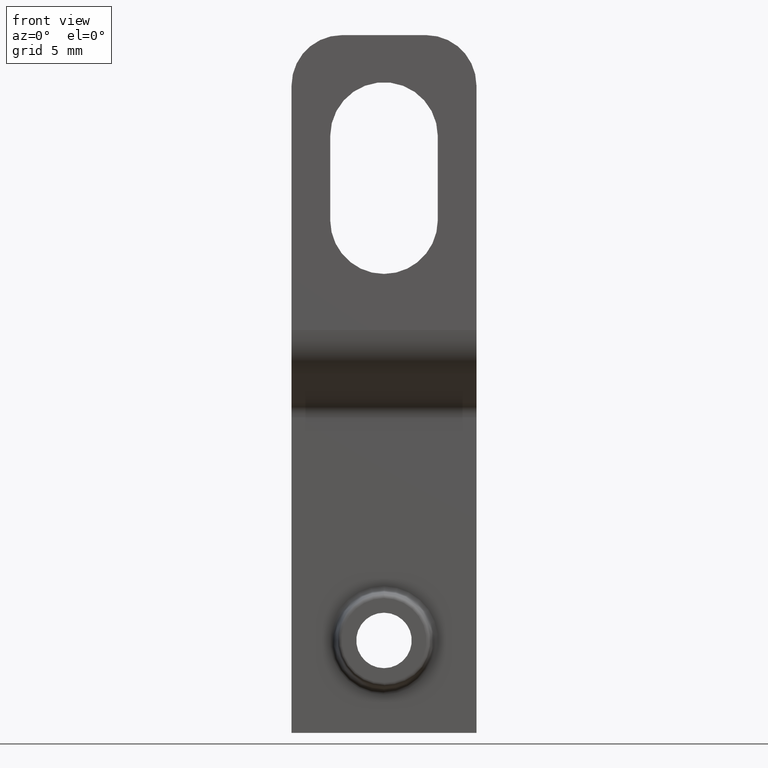
[diagram: clean part render]
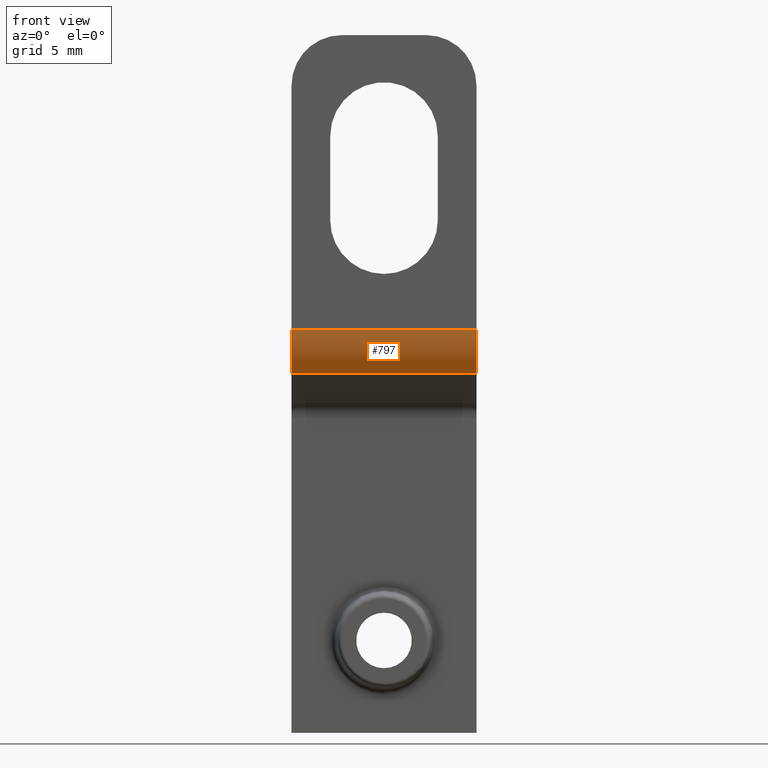
[diagram: same view with one face highlighted and labeled with its STEP entity id]
A machine part, front view. The second image highlights one B-rep face of the part: STEP entity #797.
In plain terms, the highlighted cylindrical surface (partial cylindrical patch) has radius 3 mm, axis along (-1, -0, -0).
Its self-contained STEP definition (entity closure, byte-faithful):
#123 = CARTESIAN_POINT ( 'NONE',  ( 5.500000000000000000, 0.0000000000000000000, 18.46615242270662100 ) ) ;
#187 = DIRECTION ( 'NONE',  ( -1.000000000000000000, -0.0000000000000000000, -0.0000000000000000000 ) ) ;
#188 = VECTOR ( 'NONE', #187, 1000.000000000000000 ) ;
#189 = CARTESIAN_POINT ( 'NONE',  ( 5.500000000000000000, 0.0000000000000000000, 18.46615242270662100 ) ) ;
#190 = LINE ( 'NONE', #189, #188 ) ;
#253 = CARTESIAN_POINT ( 'NONE',  ( -5.500000000000000000, 0.0000000000000000000, 18.46615242270662100 ) ) ;
#283 = DIRECTION ( 'NONE',  ( 0.0000000000000000000, 0.0000000000000000000, -1.000000000000000000 ) ) ;
#284 = DIRECTION ( 'NONE',  ( 1.000000000000000000, 0.0000000000000000000, 0.0000000000000000000 ) ) ;
#285 = CARTESIAN_POINT ( 'NONE',  ( -5.500000000000000000, 3.000000000000003600, 18.46615242270662100 ) ) ;
#286 = AXIS2_PLACEMENT_3D ( 'NONE', #285, #284, #283 ) ;
#287 = CIRCLE ( 'NONE', #286, 2.999999999999999100 ) ;
#288 = CARTESIAN_POINT ( 'NONE',  ( -5.500000000000000000, 1.500000000000009800, 15.86807621135330100 ) ) ;
#315 = FACE_OUTER_BOUND ( 'NONE', #775, .T. ) ;
#334 = CARTESIAN_POINT ( 'NONE',  ( 5.500000000000000000, 1.500000000000009800, 15.86807621135330100 ) ) ;
#335 = DIRECTION ( 'NONE',  ( -1.000000000000000000, -0.0000000000000000000, -0.0000000000000000000 ) ) ;
#336 = VECTOR ( 'NONE', #335, 1000.000000000000000 ) ;
#337 = CARTESIAN_POINT ( 'NONE',  ( 5.500000000000000000, 1.500000000000009800, 15.86807621135330100 ) ) ;
#338 = LINE ( 'NONE', #337, #336 ) ;
#339 = DIRECTION ( 'NONE',  ( 0.0000000000000000000, 0.0000000000000000000, -1.000000000000000000 ) ) ;
#340 = DIRECTION ( 'NONE',  ( 1.000000000000000000, 0.0000000000000000000, 0.0000000000000000000 ) ) ;
#341 = CARTESIAN_POINT ( 'NONE',  ( 5.500000000000000000, 3.000000000000003600, 18.46615242270662100 ) ) ;
#342 = AXIS2_PLACEMENT_3D ( 'NONE', #341, #340, #339 ) ;
#343 = CIRCLE ( 'NONE', #342, 2.999999999999999100 ) ;
#367 = DIRECTION ( 'NONE',  ( 0.0000000000000000000, 0.0000000000000000000, 1.000000000000000000 ) ) ;
#368 = DIRECTION ( 'NONE',  ( -1.000000000000000000, -0.0000000000000000000, -0.0000000000000000000 ) ) ;
#369 = CARTESIAN_POINT ( 'NONE',  ( 5.500000000000000000, 3.000000000000003600, 18.46615242270662100 ) ) ;
#370 = AXIS2_PLACEMENT_3D ( 'NONE', #369, #368, #367 ) ;
#372 = CYLINDRICAL_SURFACE ( 'NONE', #370, 2.999999999999999100 ) ;
#686 = VERTEX_POINT ( 'NONE', #123 ) ;
#720 = EDGE_CURVE ( 'NONE', #686, #762, #190, .T. ) ;
#762 = VERTEX_POINT ( 'NONE', #253 ) ;
#772 = ORIENTED_EDGE ( 'NONE', *, *, #776, .T. ) ;
#773 = VERTEX_POINT ( 'NONE', #288 ) ;
#774 = ORIENTED_EDGE ( 'NONE', *, *, #783, .F. ) ;
#775 = EDGE_LOOP ( 'NONE', ( #772, #774, #781, #786 ) ) ;
#776 = EDGE_CURVE ( 'NONE', #762, #773, #287, .T. ) ;
#781 = ORIENTED_EDGE ( 'NONE', *, *, #782, .F. ) ;
#782 = EDGE_CURVE ( 'NONE', #686, #784, #343, .T. ) ;
#783 = EDGE_CURVE ( 'NONE', #784, #773, #338, .T. ) ;
#784 = VERTEX_POINT ( 'NONE', #334 ) ;
#786 = ORIENTED_EDGE ( 'NONE', *, *, #720, .T. ) ;
#797 = ADVANCED_FACE ( 'NONE', ( #315 ), #372, .T. ) ;